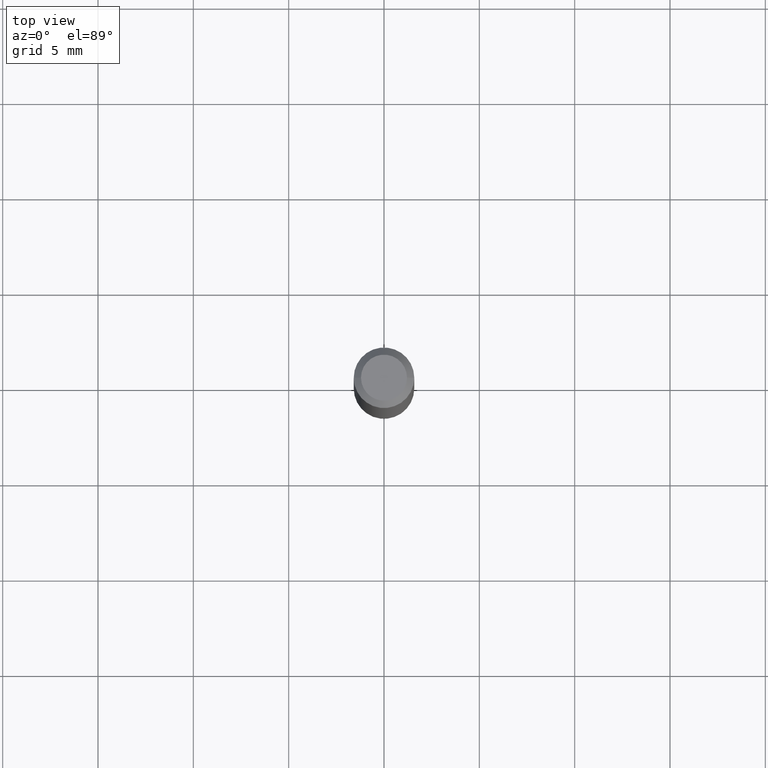
[diagram: clean part render]
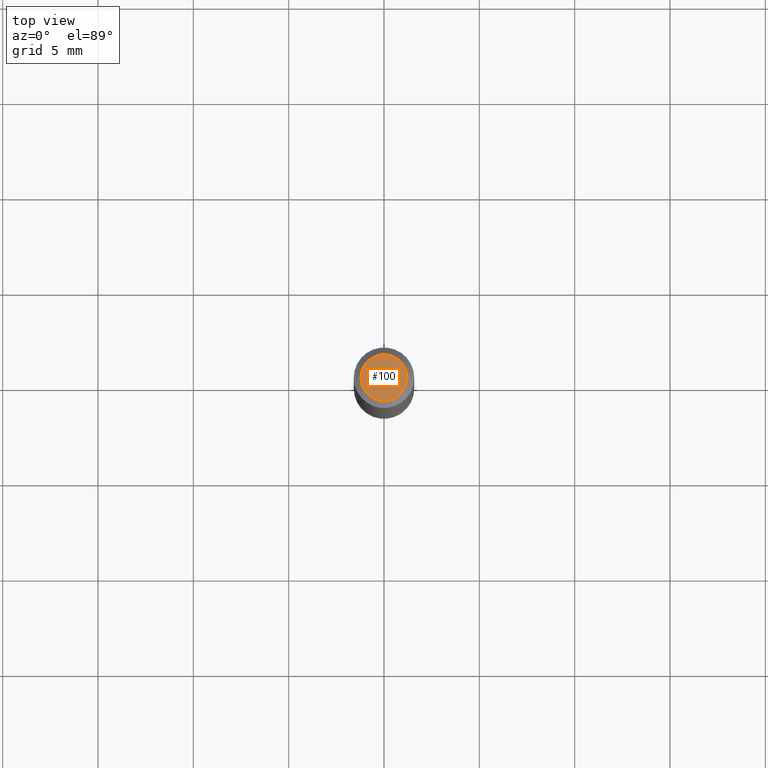
[diagram: same view with one face highlighted and labeled with its STEP entity id]
A machine part, top view. The second image highlights one B-rep face of the part: STEP entity #100.
In plain terms, the highlighted planar face has unit normal (0, -0, -1).
Its self-contained STEP definition (entity closure, byte-faithful):
#5 = EDGE_LOOP ( 'NONE', ( #34, #335 ) ) ;
#13 = CARTESIAN_POINT ( 'NONE',  ( 3.316907271900976589E-16, 0.04750000000000000749, -2.925296391183627249E-17 ) ) ;
#34 = ORIENTED_EDGE ( 'NONE', *, *, #514, .T. ) ;
#49 = PLANE ( 'NONE',  #294 ) ;
#93 = DIRECTION ( 'NONE',  ( 2.438088387897960049E-29, -3.491481338843145188E-15, -1.000000000000000000 ) ) ;
#100 = ADVANCED_FACE ( 'NONE', ( #380 ), #49, .F. ) ;
#147 = EDGE_CURVE ( 'NONE', #368, #401, #217, .T. ) ;
#175 = DIRECTION ( 'NONE',  ( 1.000000000000000000, -6.982962677686266711E-15, 4.852736867747365086E-29 ) ) ;
#185 = AXIS2_PLACEMENT_3D ( 'NONE', #405, #517, #175 ) ;
#217 = CIRCLE ( 'NONE', #403, 0.04750000000000000749 ) ;
#294 = AXIS2_PLACEMENT_3D ( 'NONE', #13, #93, #497 ) ;
#304 = CARTESIAN_POINT ( 'NONE',  ( -6.680649051745406845E-45, 9.538196290434862081E-31, 2.731847993664263218E-16 ) ) ;
#321 = CIRCLE ( 'NONE', #185, 0.04750000000000000749 ) ;
#335 = ORIENTED_EDGE ( 'NONE', *, *, #147, .T. ) ;
#344 = DIRECTION ( 'NONE',  ( -2.445468806185136597E-29, 3.491481338843145583E-15, 1.000000000000000000 ) ) ;
#368 = VERTEX_POINT ( 'NONE', #515 ) ;
#380 = FACE_OUTER_BOUND ( 'NONE', #5, .T. ) ;
#401 = VERTEX_POINT ( 'NONE', #440 ) ;
#403 = AXIS2_PLACEMENT_3D ( 'NONE', #304, #344, #461 ) ;
#405 = CARTESIAN_POINT ( 'NONE',  ( -6.680649051745406845E-45, 9.538196290434862081E-31, 2.731847993664263218E-16 ) ) ;
#440 = CARTESIAN_POINT ( 'NONE',  ( -0.04750000000000000749, 3.578768372314221353E-16, 2.731847993664239060E-16 ) ) ;
#461 = DIRECTION ( 'NONE',  ( 1.000000000000000000, -6.982962677686266711E-15, 4.852736867747365086E-29 ) ) ;
#497 = DIRECTION ( 'NONE',  ( -1.000000000000000000, 6.982962677686265922E-15, -4.876176775795935793E-29 ) ) ;
#514 = EDGE_CURVE ( 'NONE', #401, #368, #321, .T. ) ;
#515 = CARTESIAN_POINT ( 'NONE',  ( 0.04750000000000000749, -4.035134999187568762E-16, 2.731847993664288856E-16 ) ) ;
#517 = DIRECTION ( 'NONE',  ( -2.445468806185136597E-29, 3.491481338843145583E-15, 1.000000000000000000 ) ) ;